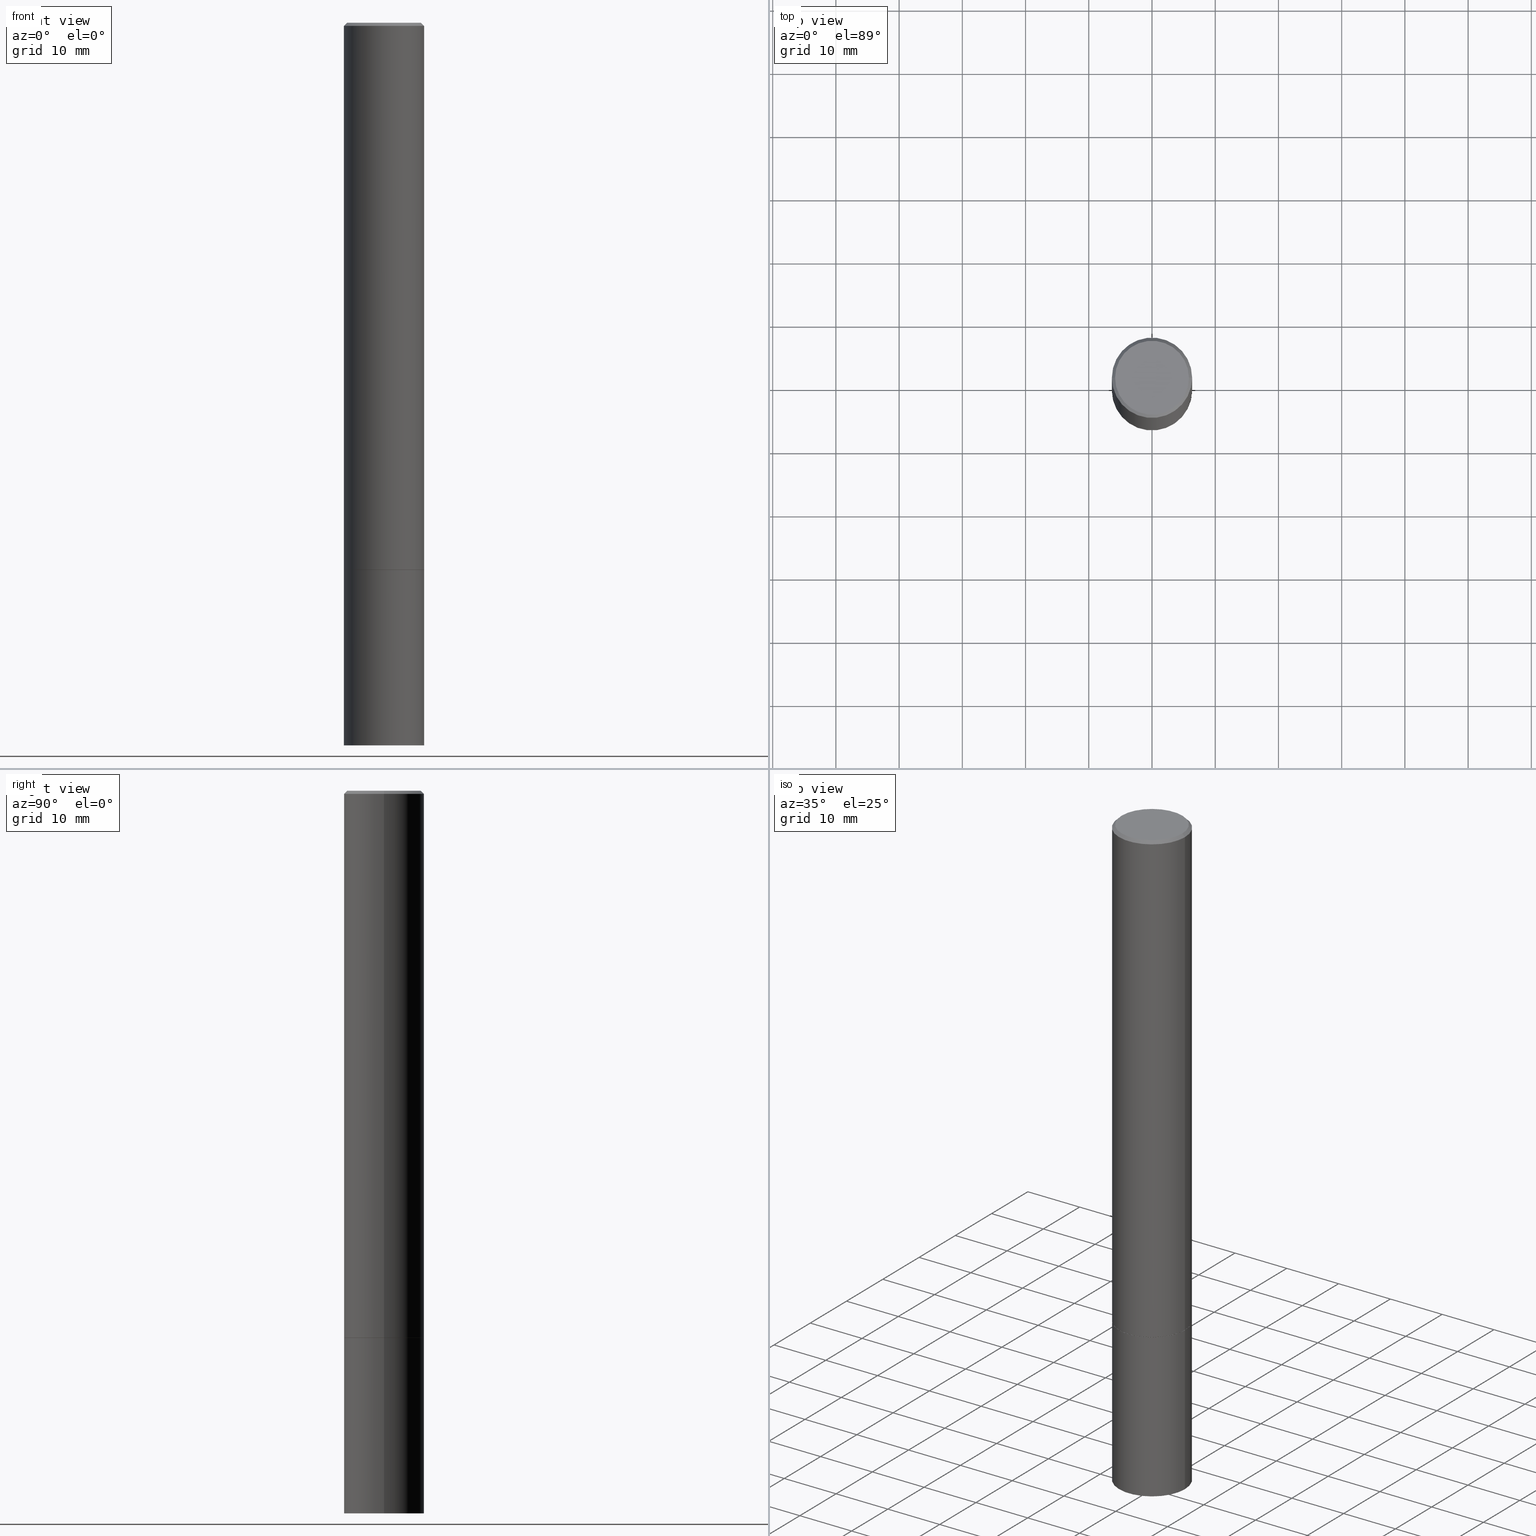
[diagram: canonical four-view strip — front | top / right | iso, engineering-drawing reading convention]
A machine part, canonical four-view strip (front | top / right | iso — engineering-drawing reading convention). The complete STEP part file that produces these views, byte-faithful:
ISO-10303-21;
HEADER;
FILE_DESCRIPTION (( 'STEP AP203' ),
    '1' );
FILE_NAME ('36143.STEP',
    '2024-02-27T19:14:52',
    ( '' ),
    ( '' ),
    'SwSTEP 2.0',
    'SolidWorks 2023',
    '' );
FILE_SCHEMA (( 'CONFIG_CONTROL_DESIGN' ));
ENDSEC;

DATA;
#1 = DATE_AND_TIME ( #350, #53 ) ;
#2 = ORIENTED_EDGE ( 'NONE', *, *, #224, .T. ) ;
#3 = VERTEX_POINT ( 'NONE', #93 ) ;
#4 = FACE_OUTER_BOUND ( 'NONE', #287, .T. ) ;
#5 = DIRECTION ( 'NONE',  ( -2.445468806185136877E-29, 3.491481338843145188E-15, 1.000000000000000000 ) ) ;
#6 = APPROVAL_DATE_TIME ( #262, #133 ) ;
#7 = LOCAL_TIME ( 14, 14, 52.00000000000000000, #77 ) ;
#8 = EDGE_CURVE ( 'NONE', #91, #249, #263, .T. ) ;
#9 = DATE_AND_TIME ( #289, #7 ) ;
#10 = ORIENTED_EDGE ( 'NONE', *, *, #261, .F. ) ;
#11 = DIRECTION ( 'NONE',  ( -1.000000000000000000, 6.982962677686265922E-15, -4.876176775795935793E-29 ) ) ;
#12 = CONICAL_SURFACE ( 'NONE', #352, 0.2489999999999999991, 0.7853981633975507526 ) ;
#13 = DIRECTION ( 'NONE',  ( 1.000000000000000000, -6.982962677686266711E-15, 4.876225828469317850E-29 ) ) ;
#14 = EDGE_CURVE ( 'NONE', #209, #3, #324, .T. ) ;
#15 = DIRECTION ( 'NONE',  ( -1.000000000000000000, 6.982962677686266711E-15, 0.000000000000000000 ) ) ;
#16 = SECURITY_CLASSIFICATION_LEVEL ( 'unclassified' ) ;
#17 = AXIS2_PLACEMENT_3D ( 'NONE', #211, #206, #177 ) ;
#18 = AXIS2_PLACEMENT_3D ( 'NONE', #76, #65, #291 ) ;
#19 = APPLICATION_CONTEXT ( 'configuration controlled 3d designs of mechanical parts and assemblies' ) ;
#20 = ORIENTED_EDGE ( 'NONE', *, *, #123, .F. ) ;
#21 = CONICAL_SURFACE ( 'NONE', #48, 0.2499999999999995837, 0.7853981633974472798 ) ;
#22 = EDGE_LOOP ( 'NONE', ( #348, #168, #153, #253 ) ) ;
#23 = CARTESIAN_POINT ( 'NONE',  ( -1.043851414335219820E-46, 1.490343170380447200E-32, 4.268512490100411279E-18 ) ) ;
#24 = DIRECTION ( 'NONE',  ( -2.445468806185136597E-29, 3.491481338843145583E-15, 1.000000000000000000 ) ) ;
#25 = APPLICATION_PROTOCOL_DEFINITION ( 'international standard', 'config_control_design', 1994, #165 ) ;
#26 = ORIENTED_EDGE ( 'NONE', *, *, #8, .T. ) ;
#27 = ORIENTED_EDGE ( 'NONE', *, *, #215, .F. ) ;
#28 = CARTESIAN_POINT ( 'NONE',  ( -0.2500000000000000000, -1.202721463371612651E-14, -4.500000000000000000 ) ) ;
#29 = CIRCLE ( 'NONE', #142, 0.2500000000000000000 ) ;
#30 = DIRECTION ( 'NONE',  ( 1.000000000000000000, -6.982962677686266711E-15, 0.000000000000000000 ) ) ;
#31 = ORIENTED_EDGE ( 'NONE', *, *, #321, .T. ) ;
#32 = DIRECTION ( 'NONE',  ( -2.445468806185136597E-29, 3.491481338843145583E-15, 1.000000000000000000 ) ) ;
#33 = PERSON_AND_ORGANIZATION_ROLE ( 'design_owner' ) ;
#34 = FACE_OUTER_BOUND ( 'NONE', #170, .T. ) ;
#35 = APPROVAL_ROLE ( '' ) ;
#36 = APPROVAL_ROLE ( '' ) ;
#37 = AXIS2_PLACEMENT_3D ( 'NONE', #335, #242, #13 ) ;
#38 = ADVANCED_BREP_SHAPE_REPRESENTATION ( '36143', ( #194, #75, #277 ), #118 ) ;
#39 = CARTESIAN_POINT ( 'NONE',  ( 1.606081415867838109E-15, 0.2299999999999995659, -8.009064516888717994E-16 ) ) ;
#40 = CARTESIAN_POINT ( 'NONE',  ( 0.000000000000000000, 0.000000000000000000, 0.000000000000000000 ) ) ;
#41 = DIRECTION ( 'NONE',  ( 0.7071067811865467956, -7.319954787623254468E-15, -0.7071067811865482389 ) ) ;
#42 = PLANE ( 'NONE',  #315 ) ;
#43 = VECTOR ( 'NONE', #234, 39.37007874015748143 ) ;
#44 = CC_DESIGN_PERSON_AND_ORGANIZATION_ASSIGNMENT ( #355, #271, ( #111 ) ) ;
#45 = LINE ( 'NONE', #220, #126 ) ;
#46 = ADVANCED_FACE ( 'NONE', ( #171 ), #296, .T. ) ;
#47 = DIRECTION ( 'NONE',  ( -0.7071067811866199593, 7.493145998870616062E-15, 0.7071067811864750752 ) ) ;
#48 = AXIS2_PLACEMENT_3D ( 'NONE', #143, #250, #197 ) ;
#49 = ADVANCED_FACE ( 'NONE', ( #150 ), #42, .F. ) ;
#50 = ORIENTED_EDGE ( 'NONE', *, *, #163, .F. ) ;
#51 = ORIENTED_EDGE ( 'NONE', *, *, #123, .T. ) ;
#52 = CLOSED_SHELL ( 'NONE', ( #157, #237, #49, #46 ) ) ;
#53 = LOCAL_TIME ( 14, 14, 52.00000000000000000, #130 ) ;
#54 = CARTESIAN_POINT ( 'NONE',  ( 0.000000000000000000, 0.000000000000000000, 0.000000000000000000 ) ) ;
#55 = LENGTH_MEASURE_WITH_UNIT ( LENGTH_MEASURE( 0.02539999999999999897 ), #120 );
#56 = ORIENTED_EDGE ( 'NONE', *, *, #229, .T. ) ;
#57 = CARTESIAN_POINT ( 'NONE',  ( 0.000000000000000000, 0.000000000000000000, 0.000000000000000000 ) ) ;
#58 = VERTEX_POINT ( 'NONE', #134 ) ;
#59 = DIRECTION ( 'NONE',  ( 1.000000000000000000, -6.982962677686270655E-15, 0.000000000000000000 ) ) ;
#60 = CC_DESIGN_DATE_AND_TIME_ASSIGNMENT ( #101, #79, ( #251 ) ) ;
#61 = ORIENTED_EDGE ( 'NONE', *, *, #229, .F. ) ;
#62 = FACE_OUTER_BOUND ( 'NONE', #200, .T. ) ;
#63 = CIRCLE ( 'NONE', #247, 0.2500000000000000000 ) ;
#64 = EDGE_CURVE ( 'NONE', #125, #58, #222, .T. ) ;
#65 = DIRECTION ( 'NONE',  ( -2.438088387897960049E-29, 3.491481338843145188E-15, 1.000000000000000000 ) ) ;
#66 = DATE_AND_TIME ( #98, #303 ) ;
#67 = ORIENTED_EDGE ( 'NONE', *, *, #330, .T. ) ;
#68 = APPROVAL ( #268, 'UNSPECIFIED' ) ;
#69 = PERSON_AND_ORGANIZATION ( #99, #185 ) ;
#70 = CIRCLE ( 'NONE', #365, 0.2489999999999999991 ) ;
#71 = CARTESIAN_POINT ( 'NONE',  ( 0.2499999999999995837, -1.784954126219743033E-15, -0.02000000000000006287 ) ) ;
#72 = DIRECTION ( 'NONE',  ( 1.000000000000000000, -6.982962677686270655E-15, 0.000000000000000000 ) ) ;
#73 = EDGE_CURVE ( 'NONE', #96, #310, #148, .T. ) ;
#74 = PERSON_AND_ORGANIZATION_ROLE ( 'creator' ) ;
#75 = MANIFOLD_SOLID_BREP ( 'Body-Move/Copy2[2]', #276 ) ;
#76 = CARTESIAN_POINT ( 'NONE',  ( 8.331712222672760735E-29, -1.189547692143859706E-14, -3.407000000000000028 ) ) ;
#77 = COORDINATED_UNIVERSAL_TIME_OFFSET ( 5, 0, .BEHIND. ) ;
#78 = PLANE ( 'NONE',  #18 ) ;
#79 = DATE_TIME_ROLE ( 'creation_date' ) ;
#80 = CARTESIAN_POINT ( 'NONE',  ( 0.2500000000000000000, -1.364121759086016216E-14, -3.407000000000000028 ) ) ;
#81 = EDGE_CURVE ( 'NONE', #91, #209, #155, .T. ) ;
#82 = AXIS2_PLACEMENT_3D ( 'NONE', #137, #245, #334 ) ;
#83 = FACE_OUTER_BOUND ( 'NONE', #22, .T. ) ;
#84 = CC_DESIGN_PERSON_AND_ORGANIZATION_ASSIGNMENT ( #180, #33, ( #248 ) ) ;
#85 = AXIS2_PLACEMENT_3D ( 'NONE', #23, #115, #235 ) ;
#86 = DIRECTION ( 'NONE',  ( 1.000000000000000000, -6.982962677686266711E-15, 0.000000000000000000 ) ) ;
#87 = PRODUCT_RELATED_PRODUCT_CATEGORY ( 'detail', '', ( #248 ) ) ;
#88 = VERTEX_POINT ( 'NONE', #80 ) ;
#89 = CARTESIAN_POINT ( 'NONE',  ( 0.2299999999999995659, -1.681434332853596250E-15, 4.268512490111905999E-18 ) ) ;
#90 = MECHANICAL_CONTEXT ( 'NONE', #165, 'mechanical' ) ;
#91 = VERTEX_POINT ( 'NONE', #192 ) ;
#92 = EDGE_CURVE ( 'NONE', #96, #258, #302, .T. ) ;
#93 = CARTESIAN_POINT ( 'NONE',  ( 0.2499999999999995837, -1.784954126219743033E-15, -0.02000000000000006287 ) ) ;
#94 = DIRECTION ( 'NONE',  ( -2.445468806185136597E-29, 3.491481338843145583E-15, 1.000000000000000000 ) ) ;
#95 = DIRECTION ( 'NONE',  ( -1.000000000000000000, 6.982962677686265922E-15, -4.876176775795935793E-29 ) ) ;
#96 = VERTEX_POINT ( 'NONE', #356 ) ;
#97 = PLANE ( 'NONE',  #364 ) ;
#98 = CALENDAR_DATE ( 2024, 27, 2 ) ;
#99 = PERSON ( 'UNSPECIFIED', 'UNSPECIFIED', 'UNSPECIFIED', ('UNSPECIFIED'), ('UNSPECIFIED'), ('UNSPECIFIED') ) ;
#100 = DIRECTION ( 'NONE',  ( 1.000000000000000000, -6.982962677686270655E-15, 0.000000000000000000 ) ) ;
#101 = DATE_AND_TIME ( #243, #169 ) ;
#102 = VECTOR ( 'NONE', #5, 39.37007874015748143 ) ;
#103 = CARTESIAN_POINT ( 'NONE',  ( 1.100460962783311469E-28, -1.571166602479415690E-14, -4.500000000000000000 ) ) ;
#104 = DIRECTION ( 'NONE',  ( 2.438088387897960049E-29, -3.491481338843145188E-15, -1.000000000000000000 ) ) ;
#105 = CARTESIAN_POINT ( 'NONE',  ( 8.331712222672760735E-29, -1.189547692143859706E-14, -3.407000000000000028 ) ) ;
#106 = UNCERTAINTY_MEASURE_WITH_UNIT (LENGTH_MEASURE( 1.000000000000000082E-05 ), #284, 'distance_accuracy_value', 'NONE');
#107 = VECTOR ( 'NONE', #239, 39.37007874015748143 ) ;
#108 = DIRECTION ( 'NONE',  ( -2.445468806185136597E-29, 3.491481338843145583E-15, 1.000000000000000000 ) ) ;
#109 = SHAPE_DEFINITION_REPRESENTATION ( #196, #38 ) ;
#110 = CONICAL_SURFACE ( 'NONE', #316, 0.2499999999999995837, 0.7853981633974472798 ) ;
#111 = PRODUCT_DEFINITION_FORMATION_WITH_SPECIFIED_SOURCE ( 'ANY', '', #248, .NOT_KNOWN. ) ;
#112 = CC_DESIGN_PERSON_AND_ORGANIZATION_ASSIGNMENT ( #128, #74, ( #251 ) ) ;
#113 = DIRECTION ( 'NONE',  ( 1.000000000000000000, -6.982962677686262766E-15, 0.000000000000000000 ) ) ;
#114 = ORIENTED_EDGE ( 'NONE', *, *, #163, .T. ) ;
#115 = DIRECTION ( 'NONE',  ( -2.445468806185136597E-29, 3.491481338843145583E-15, 1.000000000000000000 ) ) ;
#116 = ORIENTED_EDGE ( 'NONE', *, *, #204, .T. ) ;
#117 = AXIS2_PLACEMENT_3D ( 'NONE', #360, #32, #151 ) ;
#118 =( GEOMETRIC_REPRESENTATION_CONTEXT ( 3 ) GLOBAL_UNCERTAINTY_ASSIGNED_CONTEXT ( ( #106 ) ) GLOBAL_UNIT_ASSIGNED_CONTEXT ( ( #284, #257, #341 ) ) REPRESENTATION_CONTEXT ( 'NONE', 'WORKASPACE' ) );
#119 = CARTESIAN_POINT ( 'NONE',  ( 0.2489999999999999991, -1.363423462818247772E-14, -3.407000000000000028 ) ) ;
#120 =( LENGTH_UNIT ( ) NAMED_UNIT ( * ) SI_UNIT ( $, .METRE. ) );
#121 = ORIENTED_EDGE ( 'NONE', *, *, #336, .T. ) ;
#122 = FACE_OUTER_BOUND ( 'NONE', #195, .T. ) ;
#123 = EDGE_CURVE ( 'NONE', #58, #88, #45, .T. ) ;
#124 = DIRECTION ( 'NONE',  ( -2.445468806185136597E-29, 3.491481338843145583E-15, 1.000000000000000000 ) ) ;
#125 = VERTEX_POINT ( 'NONE', #28 ) ;
#126 = VECTOR ( 'NONE', #304, 39.37007874015748143 ) ;
#127 = CC_DESIGN_APPROVAL ( #133, ( #251 ) ) ;
#128 = PERSON_AND_ORGANIZATION ( #99, #185 ) ;
#129 = CARTESIAN_POINT ( 'NONE',  ( -0.2500000000000000000, 1.776356839400250465E-15, -1.229733772563726445E-29 ) ) ;
#130 = COORDINATED_UNIVERSAL_TIME_OFFSET ( 5, 0, .BEHIND. ) ;
#131 = ORIENTED_EDGE ( 'NONE', *, *, #138, .T. ) ;
#132 = PERSON_AND_ORGANIZATION ( #99, #185 ) ;
#133 = APPROVAL ( #152, 'UNSPECIFIED' ) ;
#134 = CARTESIAN_POINT ( 'NONE',  ( 0.2500000000000000000, -1.745740669421572357E-14, -4.500000000000000000 ) ) ;
#135 = FACE_OUTER_BOUND ( 'NONE', #145, .T. ) ;
#136 = CIRCLE ( 'NONE', #17, 0.2499999999999995837 ) ;
#137 = CARTESIAN_POINT ( 'NONE',  ( 8.331712222672760735E-29, -1.189547692143859706E-14, -3.407000000000000028 ) ) ;
#138 = EDGE_CURVE ( 'NONE', #209, #91, #190, .T. ) ;
#139 = PERSON_AND_ORGANIZATION ( #99, #185 ) ;
#140 = EDGE_CURVE ( 'NONE', #258, #249, #311, .T. ) ;
#141 = CARTESIAN_POINT ( 'NONE',  ( -0.2489999999999999991, -1.012622550939594681E-14, -3.407000000000000028 ) ) ;
#142 = AXIS2_PLACEMENT_3D ( 'NONE', #160, #295, #72 ) ;
#143 = CARTESIAN_POINT ( 'NONE',  ( 4.890937612370288923E-31, -6.982962677686312563E-17, -0.02000000000000006287 ) ) ;
#144 = ADVANCED_FACE ( 'NONE', ( #83 ), #21, .T. ) ;
#145 = EDGE_LOOP ( 'NONE', ( #67, #203, #205, #308 ) ) ;
#146 = DIRECTION ( 'NONE',  ( 1.000000000000000000, -6.982962677686266711E-15, 4.876176775795935793E-29 ) ) ;
#147 = ORIENTED_EDGE ( 'NONE', *, *, #336, .F. ) ;
#148 = CIRCLE ( 'NONE', #82, 0.2489999999999999991 ) ;
#149 = CARTESIAN_POINT ( 'NONE',  ( 8.329266753866575132E-29, -1.189198544009975405E-14, -3.406000000000000139 ) ) ;
#150 = FACE_OUTER_BOUND ( 'NONE', #280, .T. ) ;
#151 = DIRECTION ( 'NONE',  ( 1.000000000000000000, -6.982962677686262766E-15, 0.000000000000000000 ) ) ;
#152 = APPROVAL_STATUS ( 'not_yet_approved' ) ;
#153 = ORIENTED_EDGE ( 'NONE', *, *, #215, .T. ) ;
#154 = COORDINATED_UNIVERSAL_TIME_OFFSET ( 5, 0, .BEHIND. ) ;
#155 = CIRCLE ( 'NONE', #37, 0.2299999999999995659 ) ;
#156 = DIRECTION ( 'NONE',  ( 1.000000000000000000, -6.982962677686266711E-15, 0.000000000000000000 ) ) ;
#157 = ADVANCED_FACE ( 'NONE', ( #4 ), #345, .T. ) ;
#158 = CARTESIAN_POINT ( 'NONE',  ( -0.2499999999999995837, 1.675911042644700618E-15, -0.02000000000000006287 ) ) ;
#159 = VERTEX_POINT ( 'NONE', #226 ) ;
#160 = CARTESIAN_POINT ( 'NONE',  ( 8.329266753866575132E-29, -1.189198544009975405E-14, -3.406000000000000139 ) ) ;
#161 = CARTESIAN_POINT ( 'NONE',  ( 1.745740669421649705E-15, 0.2499999999999881206, -3.407000000000000917 ) ) ;
#162 = CIRCLE ( 'NONE', #306, 0.2500000000000000000 ) ;
#163 = EDGE_CURVE ( 'NONE', #258, #159, #162, .T. ) ;
#164 = COORDINATED_UNIVERSAL_TIME_OFFSET ( 5, 0, .BEHIND. ) ;
#165 = APPLICATION_CONTEXT ( 'configuration controlled 3d designs of mechanical parts and assemblies' ) ;
#166 = ADVANCED_FACE ( 'NONE', ( #122 ), #281, .T. ) ;
#167 = AXIS2_PLACEMENT_3D ( 'NONE', #259, #318, #113 ) ;
#168 = ORIENTED_EDGE ( 'NONE', *, *, #14, .T. ) ;
#169 = LOCAL_TIME ( 14, 14, 52.00000000000000000, #328 ) ;
#170 = EDGE_LOOP ( 'NONE', ( #366, #290 ) ) ;
#171 = FACE_OUTER_BOUND ( 'NONE', #359, .T. ) ;
#172 = ORIENTED_EDGE ( 'NONE', *, *, #330, .F. ) ;
#173 = DIRECTION ( 'NONE',  ( -2.445468806185136597E-29, 3.491481338843145583E-15, 1.000000000000000000 ) ) ;
#174 = EDGE_LOOP ( 'NONE', ( #344, #313, #26, #121 ) ) ;
#175 = CARTESIAN_POINT ( 'NONE',  ( 0.000000000000000000, 0.000000000000000000, 0.000000000000000000 ) ) ;
#176 = CIRCLE ( 'NONE', #167, 0.2500000000000000000 ) ;
#177 = DIRECTION ( 'NONE',  ( 1.000000000000000000, -6.982962677686266711E-15, 0.000000000000000000 ) ) ;
#178 = CARTESIAN_POINT ( 'NONE',  ( 4.890937612370288923E-31, -6.982962677686312563E-17, -0.02000000000000006287 ) ) ;
#179 = CARTESIAN_POINT ( 'NONE',  ( -0.2500000000000000000, -1.202721463371612651E-14, -3.407000000000000028 ) ) ;
#180 = PERSON_AND_ORGANIZATION ( #99, #185 ) ;
#181 = CARTESIAN_POINT ( 'NONE',  ( 1.100460962783311469E-28, -1.571166602479415690E-14, -4.500000000000000000 ) ) ;
#182 = PERSON_AND_ORGANIZATION_ROLE ( 'classification_officer' ) ;
#183 = ORIENTED_EDGE ( 'NONE', *, *, #278, .T. ) ;
#184 = DIRECTION ( 'NONE',  ( 2.445468806185136597E-29, -3.491481338843145583E-15, -1.000000000000000000 ) ) ;
#185 = ORGANIZATION ( 'UNSPECIFIED', 'UNSPECIFIED', '' ) ;
#186 = DIRECTION ( 'NONE',  ( -2.445468806185136597E-29, 3.491481338843145583E-15, 1.000000000000000000 ) ) ;
#187 = PERSON_AND_ORGANIZATION ( #99, #185 ) ;
#188 = ADVANCED_FACE ( 'NONE', ( #62 ), #363, .T. ) ;
#189 = CARTESIAN_POINT ( 'NONE',  ( 1.745740669421676527E-15, 0.2499999999999842903, -4.500000000000000888 ) ) ;
#190 = CIRCLE ( 'NONE', #85, 0.2299999999999995659 ) ;
#191 = CONICAL_SURFACE ( 'NONE', #199, 0.2489999999999999991, 0.7853981633975507526 ) ;
#192 = CARTESIAN_POINT ( 'NONE',  ( -0.2299999999999995659, 1.640996229256269561E-15, 4.268512490089056766E-18 ) ) ;
#193 = AXIS2_PLACEMENT_3D ( 'NONE', #39, #327, #95 ) ;
#194 = MANIFOLD_SOLID_BREP ( 'Body-Move/Copy2[1]', #52 ) ;
#195 = EDGE_LOOP ( 'NONE', ( #31, #282, #27, #340 ) ) ;
#196 = PRODUCT_DEFINITION_SHAPE ( 'NONE', 'NONE',  #251 ) ;
#197 = DIRECTION ( 'NONE',  ( -1.000000000000000000, 6.982962677686266711E-15, 0.000000000000000000 ) ) ;
#198 = AXIS2_PLACEMENT_3D ( 'NONE', #40, #94, #292 ) ;
#199 = AXIS2_PLACEMENT_3D ( 'NONE', #329, #346, #319 ) ;
#200 = EDGE_LOOP ( 'NONE', ( #227, #114, #231, #147 ) ) ;
#201 = CARTESIAN_POINT ( 'NONE',  ( -0.2499999999999998057, 1.776356839400249084E-15, -1.229733772563725465E-29 ) ) ;
#202 = LINE ( 'NONE', #312, #339 ) ;
#203 = ORIENTED_EDGE ( 'NONE', *, *, #92, .T. ) ;
#204 = EDGE_CURVE ( 'NONE', #310, #159, #256, .T. ) ;
#205 = ORIENTED_EDGE ( 'NONE', *, *, #321, .F. ) ;
#206 = DIRECTION ( 'NONE',  ( -2.445468806185136597E-29, 3.491481338843145583E-15, 1.000000000000000000 ) ) ;
#207 = CC_DESIGN_PERSON_AND_ORGANIZATION_ASSIGNMENT ( #139, #182, ( #230 ) ) ;
#208 = VECTOR ( 'NONE', #309, 39.37007874015748143 ) ;
#209 = VERTEX_POINT ( 'NONE', #89 ) ;
#210 = CC_DESIGN_SECURITY_CLASSIFICATION ( #230, ( #111 ) ) ;
#211 = CARTESIAN_POINT ( 'NONE',  ( 4.890937612370288923E-31, -6.982962677686312563E-17, -0.02000000000000006287 ) ) ;
#212 = DIRECTION ( 'NONE',  ( 1.000000000000000000, 0.000000000000000000, 0.000000000000000000 ) ) ;
#213 = DIRECTION ( 'NONE',  ( 0.000000000000000000, 0.000000000000000000, 1.000000000000000000 ) ) ;
#214 = ORIENTED_EDGE ( 'NONE', *, *, #64, .T. ) ;
#215 = EDGE_CURVE ( 'NONE', #3, #249, #136, .T. ) ;
#216 = FACE_OUTER_BOUND ( 'NONE', #255, .T. ) ;
#217 = LOCAL_TIME ( 14, 14, 52.00000000000000000, #154 ) ;
#218 = CARTESIAN_POINT ( 'NONE',  ( 0.2489999999999999991, -1.363423462818247772E-14, -3.407000000000000028 ) ) ;
#219 = PERSON_AND_ORGANIZATION_ROLE ( 'design_supplier' ) ;
#220 = CARTESIAN_POINT ( 'NONE',  ( 0.2500000000000000000, -1.745740669421566678E-15, 1.219044193948983948E-29 ) ) ;
#221 = APPROVAL_DATE_TIME ( #66, #68 ) ;
#222 = CIRCLE ( 'NONE', #338, 0.2500000000000000000 ) ;
#223 = APPROVAL_PERSON_ORGANIZATION ( #187, #266, #36 ) ;
#224 = EDGE_CURVE ( 'NONE', #88, #233, #273, .T. ) ;
#225 = ORIENTED_EDGE ( 'NONE', *, *, #224, .F. ) ;
#226 = CARTESIAN_POINT ( 'NONE',  ( 0.2500000000000000000, -1.363772610952132230E-14, -3.406000000000000139 ) ) ;
#227 = ORIENTED_EDGE ( 'NONE', *, *, #140, .F. ) ;
#228 = AXIS2_PLACEMENT_3D ( 'NONE', #175, #342, #283 ) ;
#229 = EDGE_CURVE ( 'NONE', #233, #88, #176, .T. ) ;
#230 = SECURITY_CLASSIFICATION ( '', '', #16 ) ;
#231 = ORIENTED_EDGE ( 'NONE', *, *, #347, .T. ) ;
#232 = APPROVAL_DATE_TIME ( #1, #266 ) ;
#233 = VERTEX_POINT ( 'NONE', #179 ) ;
#234 = DIRECTION ( 'NONE',  ( 0.7071067811866199593, -2.468850131083015945E-15, 0.7071067811864750752 ) ) ;
#235 = DIRECTION ( 'NONE',  ( 1.000000000000000000, -6.982962677686266711E-15, 4.876225828469317850E-29 ) ) ;
#236 = FACE_OUTER_BOUND ( 'NONE', #174, .T. ) ;
#237 = ADVANCED_FACE ( 'NONE', ( #34 ), #97, .T. ) ;
#238 = DATE_TIME_ROLE ( 'classification_date' ) ;
#239 = DIRECTION ( 'NONE',  ( -0.7071067811865467956, 2.468850131082249172E-15, -0.7071067811865482389 ) ) ;
#240 = CARTESIAN_POINT ( 'NONE',  ( -0.2500000000000000555, -4.204550694038052687E-15, -3.406000000000000139 ) ) ;
#241 = DIRECTION ( 'NONE',  ( -2.445468806185136597E-29, 3.491481338843145583E-15, 1.000000000000000000 ) ) ;
#242 = DIRECTION ( 'NONE',  ( -2.445468806185136597E-29, 3.491481338843145583E-15, 1.000000000000000000 ) ) ;
#243 = CALENDAR_DATE ( 2024, 27, 2 ) ;
#244 = EDGE_LOOP ( 'NONE', ( #274, #131 ) ) ;
#245 = DIRECTION ( 'NONE',  ( -2.445468806185136597E-29, 3.491481338843145583E-15, 1.000000000000000000 ) ) ;
#246 = ADVANCED_FACE ( 'NONE', ( #135 ), #12, .T. ) ;
#247 = AXIS2_PLACEMENT_3D ( 'NONE', #181, #326, #100 ) ;
#248 = PRODUCT ( '36143', '36143', '', ( #90 ) ) ;
#249 = VERTEX_POINT ( 'NONE', #265 ) ;
#250 = DIRECTION ( 'NONE',  ( 2.445468806185136597E-29, -3.491481338843145583E-15, -1.000000000000000000 ) ) ;
#251 = PRODUCT_DEFINITION ( 'UNKNOWN', '', #111, #332 ) ;
#252 = APPLICATION_PROTOCOL_DEFINITION ( 'international standard', 'config_control_design', 1994, #19 ) ;
#253 = ORIENTED_EDGE ( 'NONE', *, *, #8, .F. ) ;
#254 = CALENDAR_DATE ( 2024, 27, 2 ) ;
#255 = EDGE_LOOP ( 'NONE', ( #172, #260 ) ) ;
#256 = LINE ( 'NONE', #119, #43 ) ;
#257 =( NAMED_UNIT ( * ) PLANE_ANGLE_UNIT ( ) SI_UNIT ( $, .RADIAN. ) );
#258 = VERTEX_POINT ( 'NONE', #240 ) ;
#259 = CARTESIAN_POINT ( 'NONE',  ( 8.331712222672760735E-29, -1.189547692143859706E-14, -3.407000000000000028 ) ) ;
#260 = ORIENTED_EDGE ( 'NONE', *, *, #73, .F. ) ;
#261 = EDGE_CURVE ( 'NONE', #125, #233, #269, .T. ) ;
#262 = DATE_AND_TIME ( #254, #217 ) ;
#263 = LINE ( 'NONE', #158, #107 ) ;
#264 = CC_DESIGN_APPROVAL ( #266, ( #230 ) ) ;
#265 = CARTESIAN_POINT ( 'NONE',  ( -0.2499999999999995837, 1.675911042644700618E-15, -0.02000000000000006287 ) ) ;
#266 = APPROVAL ( #323, 'UNSPECIFIED' ) ;
#267 = ADVANCED_FACE ( 'NONE', ( #322 ), #349, .F. ) ;
#268 = APPROVAL_STATUS ( 'not_yet_approved' ) ;
#269 = LINE ( 'NONE', #129, #102 ) ;
#270 = APPROVAL_PERSON_ORGANIZATION ( #288, #133, #35 ) ;
#271 = PERSON_AND_ORGANIZATION_ROLE ( 'creator' ) ;
#272 = ADVANCED_FACE ( 'NONE', ( #236 ), #110, .T. ) ;
#273 = CIRCLE ( 'NONE', #117, 0.2500000000000000000 ) ;
#274 = ORIENTED_EDGE ( 'NONE', *, *, #81, .T. ) ;
#275 = DIMENSIONAL_EXPONENTS ( 1.000000000000000000, 0.000000000000000000, 0.000000000000000000, 0.000000000000000000, 0.000000000000000000, 0.000000000000000000, 0.000000000000000000 ) ;
#276 = CLOSED_SHELL ( 'NONE', ( #246, #166, #144, #272, #188, #307, #314, #267 ) ) ;
#277 = AXIS2_PLACEMENT_3D ( 'NONE', #343, #213, #212 ) ;
#278 = EDGE_CURVE ( 'NONE', #58, #125, #63, .T. ) ;
#279 = DIRECTION ( 'NONE',  ( -2.445468806185136877E-29, 3.491481338843145188E-15, 1.000000000000000000 ) ) ;
#280 = EDGE_LOOP ( 'NONE', ( #2, #56 ) ) ;
#281 = CYLINDRICAL_SURFACE ( 'NONE', #285, 0.2499999999999998057 ) ;
#282 = ORIENTED_EDGE ( 'NONE', *, *, #140, .T. ) ;
#283 = DIRECTION ( 'NONE',  ( 1.000000000000000000, -6.982962677686266711E-15, 4.876176775795935793E-29 ) ) ;
#284 =( CONVERSION_BASED_UNIT ( 'INCH', #55 ) LENGTH_UNIT ( ) NAMED_UNIT ( #275 ) );
#285 = AXIS2_PLACEMENT_3D ( 'NONE', #54, #24, #146 ) ;
#286 = DIRECTION ( 'NONE',  ( 1.000000000000000000, -6.982962677686266711E-15, 4.876176775795935793E-29 ) ) ;
#287 = EDGE_LOOP ( 'NONE', ( #183, #337, #225, #20 ) ) ;
#288 = PERSON_AND_ORGANIZATION ( #99, #185 ) ;
#289 = CALENDAR_DATE ( 2024, 27, 2 ) ;
#290 = ORIENTED_EDGE ( 'NONE', *, *, #64, .F. ) ;
#291 = DIRECTION ( 'NONE',  ( 1.000000000000000000, -6.982962677686265922E-15, 4.876176775795935793E-29 ) ) ;
#292 = DIRECTION ( 'NONE',  ( 1.000000000000000000, -6.982962677686266711E-15, 4.876176775795935793E-29 ) ) ;
#293 = DIRECTION ( 'NONE',  ( -1.000000000000000000, 6.982962677686265922E-15, -4.876176775795935793E-29 ) ) ;
#294 = CC_DESIGN_PERSON_AND_ORGANIZATION_ASSIGNMENT ( #132, #219, ( #111 ) ) ;
#295 = DIRECTION ( 'NONE',  ( -2.445468806185136597E-29, 3.491481338843145583E-15, 1.000000000000000000 ) ) ;
#296 = CYLINDRICAL_SURFACE ( 'NONE', #198, 0.2500000000000000000 ) ;
#297 = VECTOR ( 'NONE', #41, 39.37007874015748143 ) ;
#298 = AXIS2_PLACEMENT_3D ( 'NONE', #178, #124, #30 ) ;
#299 = CARTESIAN_POINT ( 'NONE',  ( 8.331712222672760735E-29, -1.189547692143859706E-14, -3.407000000000000028 ) ) ;
#300 = APPROVAL_ROLE ( '' ) ;
#301 = DIRECTION ( 'NONE',  ( 1.000000000000000000, -6.982962677686270655E-15, 0.000000000000000000 ) ) ;
#302 = LINE ( 'NONE', #141, #357 ) ;
#303 = LOCAL_TIME ( 14, 14, 52.00000000000000000, #164 ) ;
#304 = DIRECTION ( 'NONE',  ( -2.445468806185136877E-29, 3.491481338843145188E-15, 1.000000000000000000 ) ) ;
#305 = DIRECTION ( 'NONE',  ( -2.445468806185136597E-29, 3.491481338843145583E-15, 1.000000000000000000 ) ) ;
#306 = AXIS2_PLACEMENT_3D ( 'NONE', #149, #305, #59 ) ;
#307 = ADVANCED_FACE ( 'NONE', ( #354 ), #191, .T. ) ;
#308 = ORIENTED_EDGE ( 'NONE', *, *, #204, .F. ) ;
#309 = DIRECTION ( 'NONE',  ( -2.445468806185136877E-29, 3.491481338843145188E-15, 1.000000000000000000 ) ) ;
#310 = VERTEX_POINT ( 'NONE', #218 ) ;
#311 = LINE ( 'NONE', #201, #208 ) ;
#312 = CARTESIAN_POINT ( 'NONE',  ( 0.2499999999999998057, -1.745740669421565297E-15, 1.219044193948982967E-29 ) ) ;
#313 = ORIENTED_EDGE ( 'NONE', *, *, #81, .F. ) ;
#314 = ADVANCED_FACE ( 'NONE', ( #216 ), #78, .F. ) ;
#315 = AXIS2_PLACEMENT_3D ( 'NONE', #161, #353, #11 ) ;
#316 = AXIS2_PLACEMENT_3D ( 'NONE', #351, #184, #15 ) ;
#317 = ORIENTED_EDGE ( 'NONE', *, *, #73, .T. ) ;
#318 = DIRECTION ( 'NONE',  ( -2.445468806185136597E-29, 3.491481338843145583E-15, 1.000000000000000000 ) ) ;
#319 = DIRECTION ( 'NONE',  ( 1.000000000000000000, -6.982962677686266711E-15, 0.000000000000000000 ) ) ;
#320 = ORIENTED_EDGE ( 'NONE', *, *, #92, .F. ) ;
#321 = EDGE_CURVE ( 'NONE', #159, #258, #29, .T. ) ;
#322 = FACE_OUTER_BOUND ( 'NONE', #244, .T. ) ;
#323 = APPROVAL_STATUS ( 'not_yet_approved' ) ;
#324 = LINE ( 'NONE', #71, #297 ) ;
#325 = CC_DESIGN_APPROVAL ( #68, ( #111 ) ) ;
#326 = DIRECTION ( 'NONE',  ( -2.445468806185136597E-29, 3.491481338843145583E-15, 1.000000000000000000 ) ) ;
#327 = DIRECTION ( 'NONE',  ( 2.438088387897960049E-29, -3.491481338843145188E-15, -1.000000000000000000 ) ) ;
#328 = COORDINATED_UNIVERSAL_TIME_OFFSET ( 5, 0, .BEHIND. ) ;
#329 = CARTESIAN_POINT ( 'NONE',  ( 8.331712222672760735E-29, -1.189547692143859706E-14, -3.407000000000000028 ) ) ;
#330 = EDGE_CURVE ( 'NONE', #310, #96, #70, .T. ) ;
#331 = AXIS2_PLACEMENT_3D ( 'NONE', #57, #173, #286 ) ;
#332 = DESIGN_CONTEXT ( 'detailed design', #19, 'design' ) ;
#333 = APPROVAL_PERSON_ORGANIZATION ( #69, #68, #300 ) ;
#334 = DIRECTION ( 'NONE',  ( 1.000000000000000000, -6.982962677686266711E-15, 0.000000000000000000 ) ) ;
#335 = CARTESIAN_POINT ( 'NONE',  ( -1.043851414335219820E-46, 1.490343170380447200E-32, 4.268512490100411279E-18 ) ) ;
#336 = EDGE_CURVE ( 'NONE', #249, #3, #358, .T. ) ;
#337 = ORIENTED_EDGE ( 'NONE', *, *, #261, .T. ) ;
#338 = AXIS2_PLACEMENT_3D ( 'NONE', #103, #108, #301 ) ;
#339 = VECTOR ( 'NONE', #279, 39.37007874015748143 ) ;
#340 = ORIENTED_EDGE ( 'NONE', *, *, #347, .F. ) ;
#341 =( NAMED_UNIT ( * ) SI_UNIT ( $, .STERADIAN. ) SOLID_ANGLE_UNIT ( ) );
#342 = DIRECTION ( 'NONE',  ( -2.445468806185136597E-29, 3.491481338843145583E-15, 1.000000000000000000 ) ) ;
#343 = CARTESIAN_POINT ( 'NONE',  ( 0.000000000000000000, 0.000000000000000000, 0.000000000000000000 ) ) ;
#344 = ORIENTED_EDGE ( 'NONE', *, *, #14, .F. ) ;
#345 = CYLINDRICAL_SURFACE ( 'NONE', #331, 0.2500000000000000000 ) ;
#346 = DIRECTION ( 'NONE',  ( -2.445468806185136597E-29, 3.491481338843145583E-15, 1.000000000000000000 ) ) ;
#347 = EDGE_CURVE ( 'NONE', #159, #3, #202, .T. ) ;
#348 = ORIENTED_EDGE ( 'NONE', *, *, #138, .F. ) ;
#349 = PLANE ( 'NONE',  #193 ) ;
#350 = CALENDAR_DATE ( 2024, 27, 2 ) ;
#351 = CARTESIAN_POINT ( 'NONE',  ( 4.890937612370288923E-31, -6.982962677686312563E-17, -0.02000000000000006287 ) ) ;
#352 = AXIS2_PLACEMENT_3D ( 'NONE', #105, #241, #156 ) ;
#353 = DIRECTION ( 'NONE',  ( 2.438088387897960049E-29, -3.491481338843145188E-15, -1.000000000000000000 ) ) ;
#354 = FACE_OUTER_BOUND ( 'NONE', #361, .T. ) ;
#355 = PERSON_AND_ORGANIZATION ( #99, #185 ) ;
#356 = CARTESIAN_POINT ( 'NONE',  ( -0.2489999999999999991, -1.012092705504772441E-14, -3.407000000000000028 ) ) ;
#357 = VECTOR ( 'NONE', #47, 39.37007874015748143 ) ;
#358 = CIRCLE ( 'NONE', #298, 0.2499999999999995837 ) ;
#359 = EDGE_LOOP ( 'NONE', ( #10, #214, #51, #61 ) ) ;
#360 = CARTESIAN_POINT ( 'NONE',  ( 8.331712222672760735E-29, -1.189547692143859706E-14, -3.407000000000000028 ) ) ;
#361 = EDGE_LOOP ( 'NONE', ( #320, #317, #116, #50 ) ) ;
#362 = CC_DESIGN_DATE_AND_TIME_ASSIGNMENT ( #9, #238, ( #230 ) ) ;
#363 = CYLINDRICAL_SURFACE ( 'NONE', #228, 0.2499999999999998057 ) ;
#364 = AXIS2_PLACEMENT_3D ( 'NONE', #189, #104, #293 ) ;
#365 = AXIS2_PLACEMENT_3D ( 'NONE', #299, #186, #86 ) ;
#366 = ORIENTED_EDGE ( 'NONE', *, *, #278, .F. ) ;
ENDSEC;
END-ISO-10303-21;
